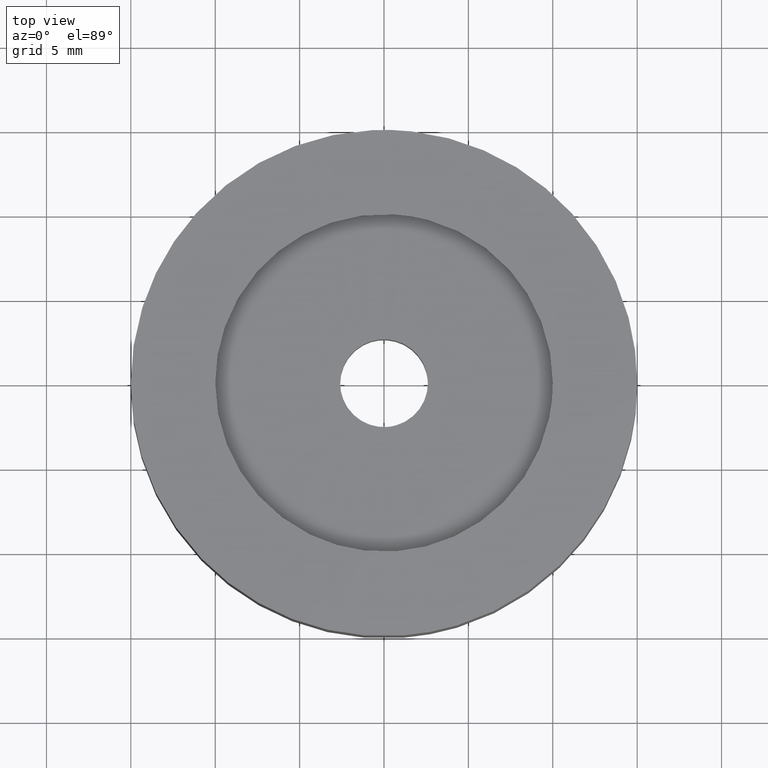
[diagram: clean part render]
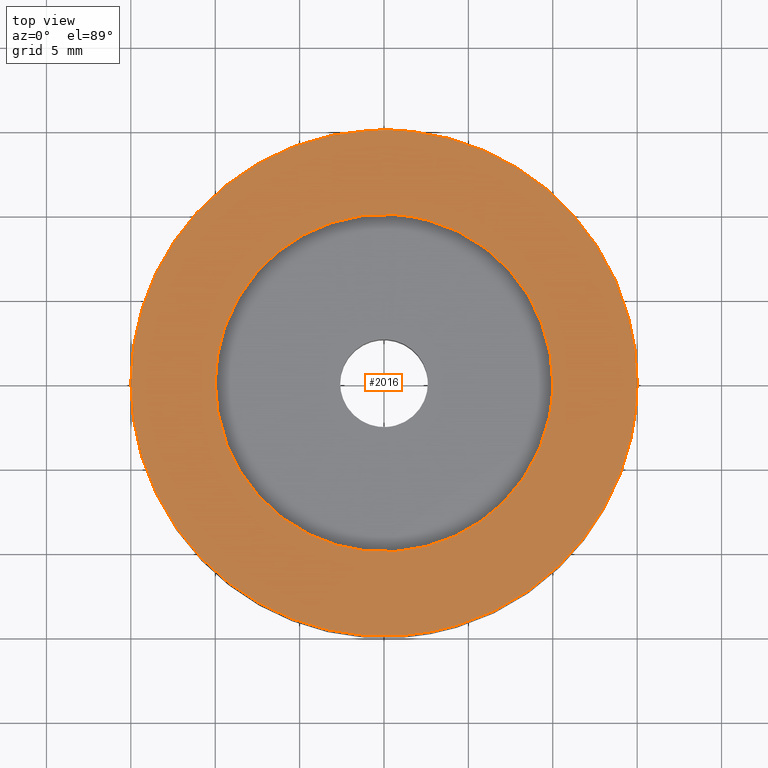
[diagram: same view with one face highlighted and labeled with its STEP entity id]
A machine part, top view. The second image highlights one B-rep face of the part: STEP entity #2016.
In plain terms, the highlighted face is a freeform B-spline surface patch.
Its self-contained STEP definition (entity closure, byte-faithful):
#780=CARTESIAN_POINT('',(-1.180332279283568,-9.930096460275623,8.999999999999901));
#781=VERTEX_POINT('',#780);
#787=CARTESIAN_POINT('',(10.0,0.0,8.999999999999901));
#788=VERTEX_POINT('',#787);
#789=CARTESIAN_POINT('',(-1.180332279283568,-9.930096460275623,8.999999999999901));
#790=CARTESIAN_POINT('',(-0.592236109662837,-10.0,8.999999999999901));
#791=CARTESIAN_POINT('',(0.0,-10.0,8.999999999999901));
#792=CARTESIAN_POINT('',(10.000000000000002,-10.000000000000002,8.999999999999901));
#793=CARTESIAN_POINT('',(10.0,0.0,8.999999999999901));
#801=(BOUNDED_CURVE()B_SPLINE_CURVE(2,(#789,#790,#791,#792,#793),.UNSPECIFIED.,.F.,.U.)B_SPLINE_CURVE_WITH_KNOTS((3,2,3),(0.229562644853760,0.250000000000000,0.500000000000000),.UNSPECIFIED.)CURVE()GEOMETRIC_REPRESENTATION_ITEM()RATIONAL_B_SPLINE_CURVE((0.956027090017880,0.976056149068737,1.0,0.707106781186548,1.0))REPRESENTATION_ITEM(''));
#802=EDGE_CURVE('',#781,#788,#801,.T.);
#804=CARTESIAN_POINT('',(0.610481839119763,9.981348201725670,8.999999999999901));
#805=VERTEX_POINT('',#804);
#806=CARTESIAN_POINT('',(10.0,0.0,8.999999999999901));
#807=CARTESIAN_POINT('',(10.0,9.407064026938018,8.999999999999901));
#808=CARTESIAN_POINT('',(0.610481839119763,9.981348201725670,8.999999999999901));
#816=(BOUNDED_CURVE()B_SPLINE_CURVE(2,(#806,#807,#808),.UNSPECIFIED.,.F.,.U.)B_SPLINE_CURVE_WITH_KNOTS((3,3),(0.500000000000000,0.739333023718223),.UNSPECIFIED.)CURVE()GEOMETRIC_REPRESENTATION_ITEM()RATIONAL_B_SPLINE_CURVE((1.0,0.719603921259253,0.976072173428554))REPRESENTATION_ITEM(''));
#817=EDGE_CURVE('',#788,#805,#816,.T.);
#891=CARTESIAN_POINT('',(-10.0,0.0,8.999999999999901));
#892=VERTEX_POINT('',#891);
#893=CARTESIAN_POINT('',(0.610481839119763,9.981348201725670,8.999999999999901));
#894=CARTESIAN_POINT('',(0.305525849885874,9.999999999999998,8.999999999999899));
#895=CARTESIAN_POINT('',(0.0,10.0,8.999999999999901));
#896=CARTESIAN_POINT('',(-10.000000000000002,10.000000000000002,8.999999999999901));
#897=CARTESIAN_POINT('',(-10.0,0.0,8.999999999999901));
#905=(BOUNDED_CURVE()B_SPLINE_CURVE(2,(#893,#894,#895,#896,#897),.UNSPECIFIED.,.F.,.U.)B_SPLINE_CURVE_WITH_KNOTS((3,2,3),(0.739333023718223,0.750000000000000,1.0),.UNSPECIFIED.)CURVE()GEOMETRIC_REPRESENTATION_ITEM()RATIONAL_B_SPLINE_CURVE((0.976072173428554,0.987502859927295,1.0,0.707106781186548,1.0))REPRESENTATION_ITEM(''));
#906=EDGE_CURVE('',#805,#892,#905,.T.);
#908=CARTESIAN_POINT('',(-10.0,0.0,8.999999999999901));
#909=CARTESIAN_POINT('',(-10.0,-8.881754327355740,8.999999999999901));
#910=CARTESIAN_POINT('',(-1.180332279283568,-9.930096460275623,8.999999999999901));
#918=(BOUNDED_CURVE()B_SPLINE_CURVE(2,(#908,#909,#910),.UNSPECIFIED.,.F.,.U.)B_SPLINE_CURVE_WITH_KNOTS((3,3),(0.0,0.229562644853760),.UNSPECIFIED.)CURVE()GEOMETRIC_REPRESENTATION_ITEM()RATIONAL_B_SPLINE_CURVE((1.0,0.731050632117811,0.956027090017880))REPRESENTATION_ITEM(''));
#919=EDGE_CURVE('',#892,#781,#918,.T.);
#1464=CARTESIAN_POINT('',(14.639534973064221,-3.268641273118853,8.999999999999901));
#1465=VERTEX_POINT('',#1464);
#1471=CARTESIAN_POINT('',(1.176877835670445,-14.953760682846070,8.999999999999901));
#1472=VERTEX_POINT('',#1471);
#1473=CARTESIAN_POINT('',(14.639534973064219,-3.268641273118853,8.999999999999901));
#1474=CARTESIAN_POINT('',(12.224672384069233,-14.084286788434422,8.999999999999901));
#1475=CARTESIAN_POINT('',(1.176877835670445,-14.953760682846076,8.999999999999901));
#1483=(BOUNDED_CURVE()B_SPLINE_CURVE(2,(#1473,#1474,#1475),.UNSPECIFIED.,.F.,.U.)B_SPLINE_CURVE_WITH_KNOTS((3,3),(0.537286561689504,0.736331399222893),.UNSPECIFIED.)CURVE()GEOMETRIC_REPRESENTATION_ITEM()RATIONAL_B_SPLINE_CURVE((0.925662738128303,0.762027682414940,0.969723561921979))REPRESENTATION_ITEM(''));
#1484=EDGE_CURVE('',#1465,#1472,#1483,.T.);
#1598=CARTESIAN_POINT('',(-15.0,0.0,8.999999999999901));
#1599=VERTEX_POINT('',#1598);
#1600=CARTESIAN_POINT('',(1.176877835670445,-14.953760682846076,8.999999999999901));
#1601=CARTESIAN_POINT('',(0.589347285036158,-15.000000000000004,8.999999999999901));
#1602=CARTESIAN_POINT('',(0.0,-15.0,8.999999999999901));
#1603=CARTESIAN_POINT('',(-14.999999999999996,-14.999999999999996,8.999999999999901));
#1604=CARTESIAN_POINT('',(-15.0,0.0,8.999999999999901));
#1612=(BOUNDED_CURVE()B_SPLINE_CURVE(2,(#1600,#1601,#1602,#1603,#1604),.UNSPECIFIED.,.F.,.U.)B_SPLINE_CURVE_WITH_KNOTS((3,2,3),(0.736331399222893,0.750000000000000,1.0),.UNSPECIFIED.)CURVE()GEOMETRIC_REPRESENTATION_ITEM()RATIONAL_B_SPLINE_CURVE((0.969723561921979,0.983986238086868,1.0,0.707106781186547,1.0))REPRESENTATION_ITEM(''));
#1613=EDGE_CURVE('',#1472,#1599,#1612,.T.);
#1615=CARTESIAN_POINT('',(15.0,0.0,8.999999999999901));
#1616=VERTEX_POINT('',#1615);
#1617=CARTESIAN_POINT('',(-15.0,0.0,8.999999999999901));
#1618=CARTESIAN_POINT('',(-14.999999999999996,14.999999999999996,8.999999999999901));
#1619=CARTESIAN_POINT('',(0.0,15.0,8.999999999999901));
#1620=CARTESIAN_POINT('',(14.999999999999996,14.999999999999996,8.999999999999901));
#1621=CARTESIAN_POINT('',(15.0,0.0,8.999999999999901));
#1629=(BOUNDED_CURVE()B_SPLINE_CURVE(2,(#1617,#1618,#1619,#1620,#1621),.UNSPECIFIED.,.F.,.U.)B_SPLINE_CURVE_WITH_KNOTS((3,2,3),(0.0,0.250000000000000,0.500000000000000),.UNSPECIFIED.)CURVE()GEOMETRIC_REPRESENTATION_ITEM()RATIONAL_B_SPLINE_CURVE((1.0,0.707106781186547,1.0,0.707106781186547,1.0))REPRESENTATION_ITEM(''));
#1630=EDGE_CURVE('',#1599,#1616,#1629,.T.);
#1632=CARTESIAN_POINT('',(15.0,0.0,8.999999999999901));
#1633=CARTESIAN_POINT('',(14.999999999999998,-1.654196637745669,8.999999999999901));
#1634=CARTESIAN_POINT('',(14.639534973064219,-3.268641273118853,8.999999999999901));
#1642=(BOUNDED_CURVE()B_SPLINE_CURVE(2,(#1632,#1633,#1634),.UNSPECIFIED.,.F.,.U.)B_SPLINE_CURVE_WITH_KNOTS((3,3),(0.500000000000000,0.537286561689504),.UNSPECIFIED.)CURVE()GEOMETRIC_REPRESENTATION_ITEM()RATIONAL_B_SPLINE_CURVE((1.0,0.956316075713099,0.925662738128303))REPRESENTATION_ITEM(''));
#1643=EDGE_CURVE('',#1616,#1465,#1642,.T.);
#1999=CARTESIAN_POINT('',(16.498499941854181,-16.494129222182931,8.999999999999901));
#2000=CARTESIAN_POINT('',(-16.498500746516889,-16.494129222182931,8.999999999999901));
#2001=CARTESIAN_POINT('',(16.498499941854181,16.498292815236749,8.999999999999901));
#2002=CARTESIAN_POINT('',(-16.498500746516889,16.498292815236749,8.999999999999901));
#2003=B_SPLINE_SURFACE_WITH_KNOTS('',1,1,((#1999,#2001),(#2000,#2002)),.UNSPECIFIED.,.F.,.F.,.U.,(2,2),(2,2),(0.0,32.997000688371060),(0.0,32.992422037419672),.UNSPECIFIED.);
#2004=ORIENTED_EDGE('',*,*,#1613,.F.);
#2005=ORIENTED_EDGE('',*,*,#1484,.F.);
#2006=ORIENTED_EDGE('',*,*,#1643,.F.);
#2007=ORIENTED_EDGE('',*,*,#1630,.F.);
#2008=EDGE_LOOP('',(#2004,#2005,#2006,#2007));
#2009=FACE_OUTER_BOUND('',#2008,.T.);
#2010=ORIENTED_EDGE('',*,*,#817,.F.);
#2011=ORIENTED_EDGE('',*,*,#802,.F.);
#2012=ORIENTED_EDGE('',*,*,#919,.F.);
#2013=ORIENTED_EDGE('',*,*,#906,.F.);
#2014=EDGE_LOOP('',(#2010,#2011,#2012,#2013));
#2015=FACE_BOUND('',#2014,.T.);
#2016=ADVANCED_FACE('',(#2009,#2015),#2003,.F.);